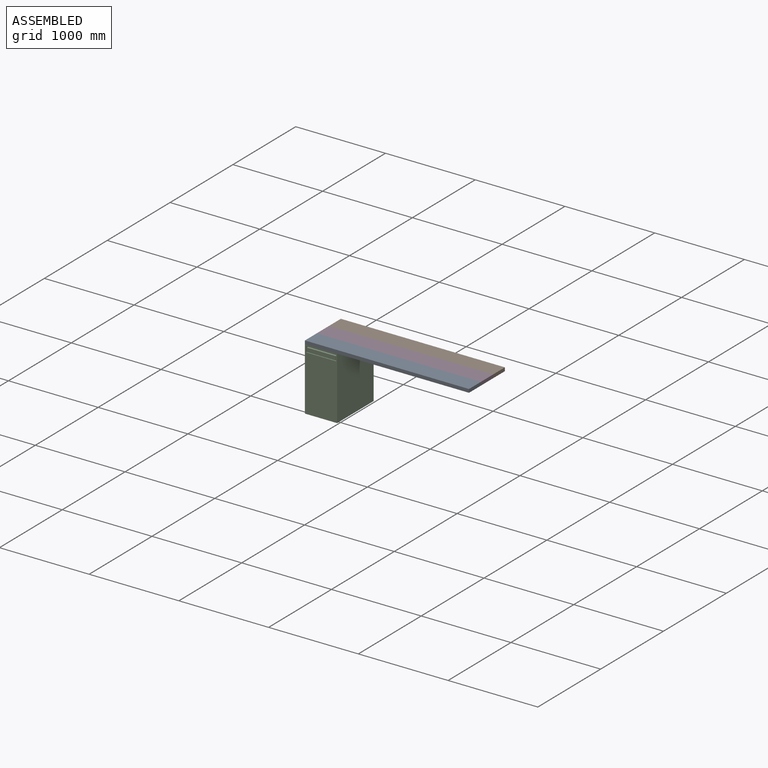
[diagram: assembled view]
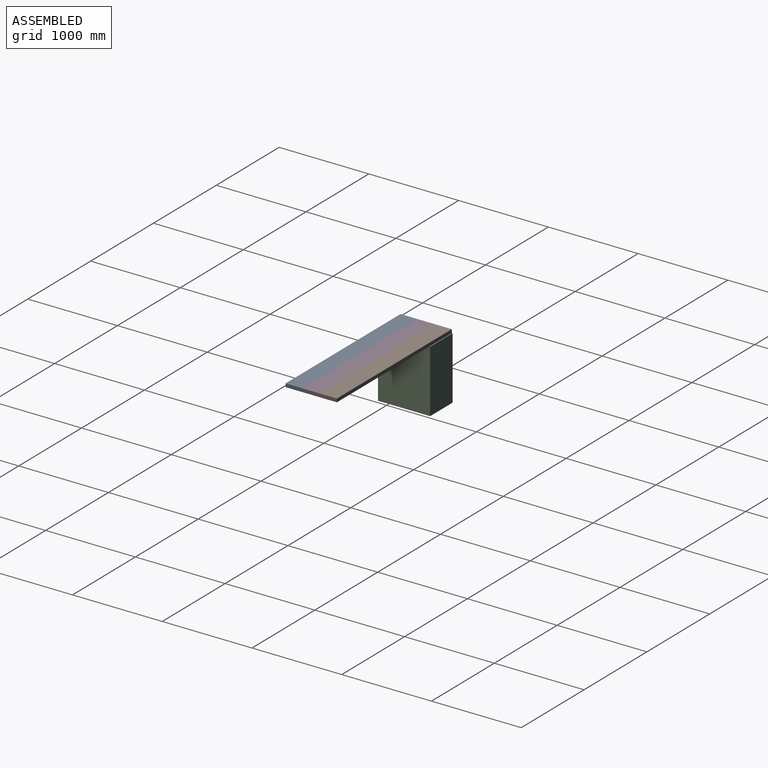
[diagram: assembled view, second angle]
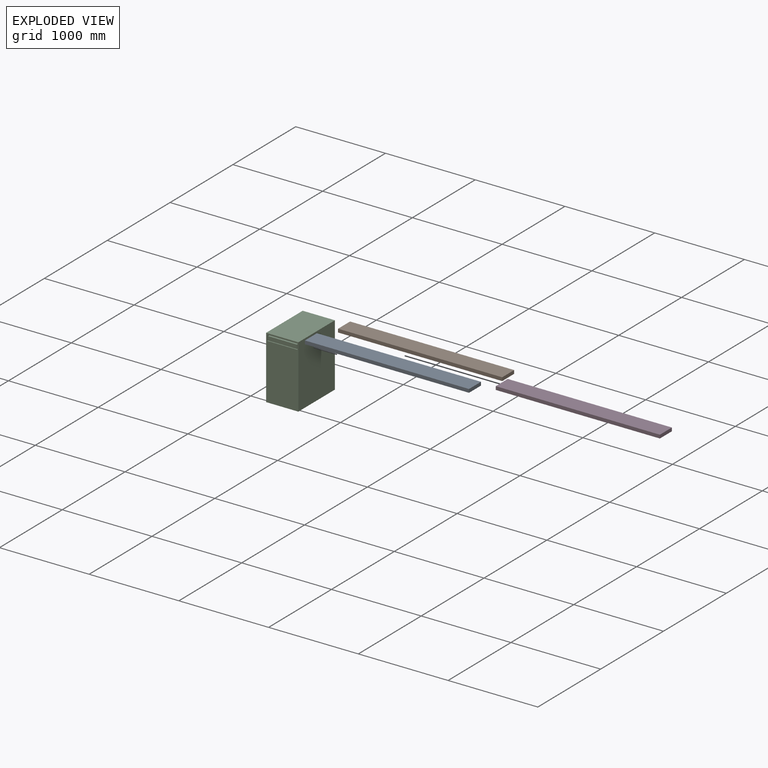
[diagram: exploded view]
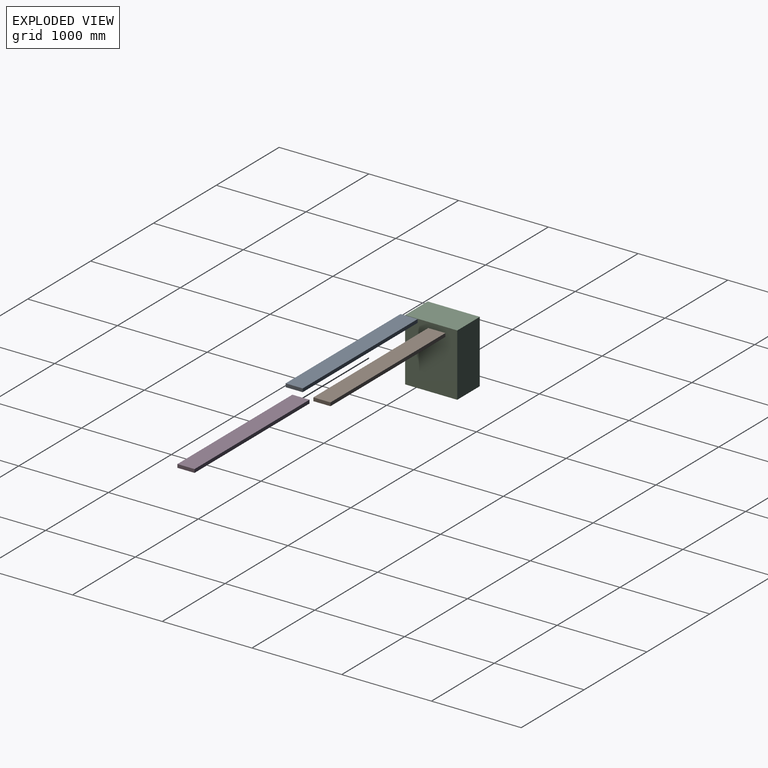
[diagram: exploded view, second angle]
ASSEMBLY  parts=4 mates=3
PART A: 6 faces, bbox 1828.8x190.5x38.1 mm
  f0: plane 190.5x38.1mm, normal (-1,0,0), area 7258mm2, adj f1,f3,f4,f5
  f1: plane 1828.8x38.1mm, normal (0,-1,0), area 69677.3mm2, adj f0,f2,f4,f5
  f2: plane 190.5x38.1mm, normal (1,0,0), area 7258mm2, adj f1,f3,f4,f5
  f3: plane 1828.8x38.1mm, normal (0,1,0), area 69677.3mm2, adj f0,f2,f4,f5
  f4: plane 1828.8x190.5mm, normal (0,0,1), area 348386.4mm2, adj f0,f1,f2,f3
  f5: plane 1828.8x190.5mm, normal (0,0,-1), area 348386.4mm2, adj f0,f1,f2,f3
PART B: same geometry as A
PART C: 16 faces, bbox 358.8x581x698.5 mm
  f0: plane 698.5x358.78mm, normal (0,-1,0), area 229798.3mm2, adj f1,f2,f3,f4,f6,f7,f8,f13
  f1: plane 698.5x581.03mm, normal (-1,0,0), area 405846mm2, adj f0,f2,f4,f5
  f2: plane 581.03x358.78mm, normal (0,0,-1), area 208457.2mm2, adj f0,f1,f3,f5
  f3: plane 698.5x581.03mm, normal (1,0,0), area 405846mm2, adj f0,f2,f4,f5
  f4: plane 581.03x358.78mm, normal (0,0,1), area 208457.2mm2, adj f0,f1,f3,f5
  f5: plane 698.5x358.78mm, normal (0,1,0), area 250604.3mm2, adj f1,f2,f3,f4
  f6: plane 457.2x336.87mm, normal (0,0,-1), area 154017.8mm2, adj f0,f7,f13,f14
  f7: plane 457.2x61.76mm, normal (1,0,0), area 28237.8mm2, adj f0,f6,f8,f14
  f8: plane 457.2x336.87mm, normal (0,0,1), area 154017.8mm2, adj f0,f7,f13,f14
  f9: plane 457.2x44.63mm, normal (-1,0,0), area 20405.8mm2, adj f10,f12,f14,f15
  f10: plane 457.2x322.63mm, normal (0,0,1), area 147504.3mm2, adj f9,f11,f14,f15
  f11: plane 457.2x44.63mm, normal (1,0,0), area 20405.8mm2, adj f10,f12,f14,f15
  f12: plane 457.2x322.63mm, normal (0,0,-1), area 147504.3mm2, adj f9,f11,f14,f15
  f13: plane 457.2x61.76mm, normal (-1,0,0), area 28237.8mm2, adj f0,f6,f8,f14
  f14: plane 336.87x61.76mm, normal (0,-1,0), area 6406.6mm2, adj f6,f7,f8,f9,f10,f11,f12,f13
  f15: plane 322.63x44.63mm, normal (0,-1,0), area 14399.4mm2, adj f9,f10,f11,f12
PART D: same geometry as A
PLACE A t=(-338.49,-82.57,798.95)mm
PLACE B t=(-338.49,298.43,798.95)mm
PLACE C t=(-338.49,-82.57,100.45)mm fixed
PLACE D t=(-338.49,107.93,798.95)mm
MATE planar C.f1 <-> A.f0  axis (-1,0,0) through (-338.49,207.94,449.7)mm
MATE planar A.f1 <-> C.f0  axis (0,-1,0) through (-338.49,-82.57,837.05)mm
MATE planar A.f5 <-> C.f4  axis (0,0,-1) through (575.91,12.68,798.95)mm
